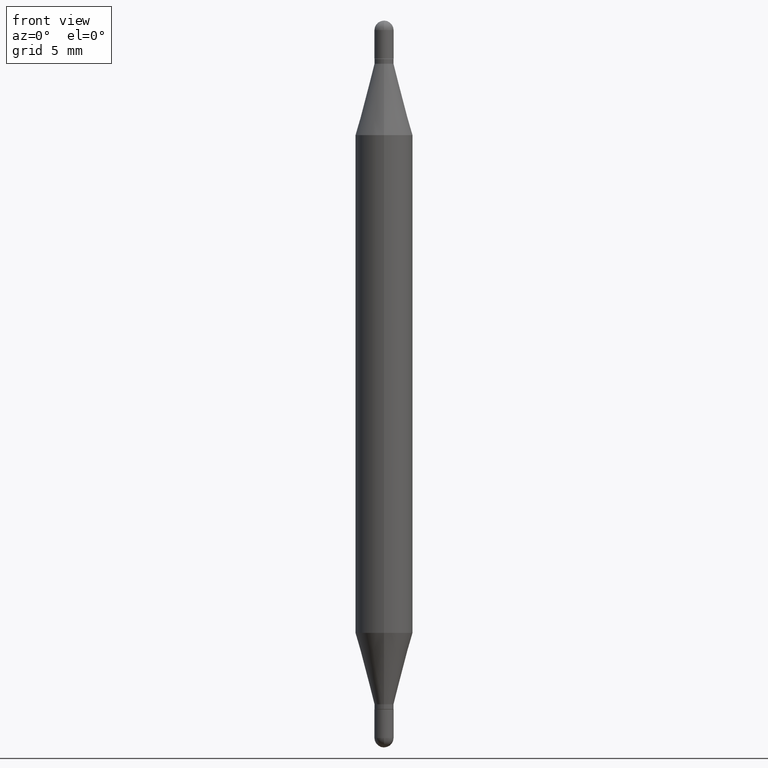
[diagram: clean part render]
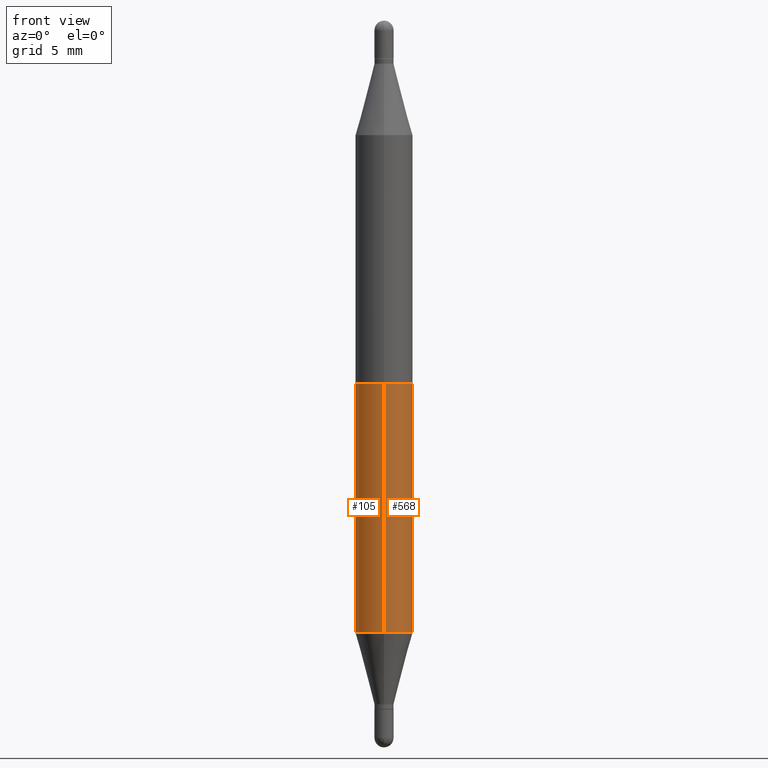
[diagram: same view with one multi-face feature highlighted, each face labeled with its STEP entity id]
A machine part, front view. The highlighted faces form ONE feature: a constant-radius fillet chain: 2 tangent blend faces with common blend radius 1.4999 mm. The faces share edges in the B-rep.
Their STEP definitions:
[1] entity #105 (Cylinder):
#32 = CARTESIAN_POINT ( 'NONE',  ( 4.051124067684090161E-16, 0.05904999999999480109, -1.496100000000000207 ) ) ;
#35 = CARTESIAN_POINT ( 'NONE',  ( 4.051124067684398803E-16, 0.05904999999999917953, -0.2358561992778360206 ) ) ;
#44 = AXIS2_PLACEMENT_3D ( 'NONE', #809, #55, #966 ) ;
#45 = AXIS2_PLACEMENT_3D ( 'NONE', #219, #890, #469 ) ;
#55 = DIRECTION ( 'NONE',  ( -2.452431780940306437E-29, -3.489585843135142611E-15, -1.000000000000000000 ) ) ;
#98 = LINE ( 'NONE', #693, #902 ) ;
#103 = EDGE_CURVE ( 'NONE', #527, #716, #423, .T. ) ;
#105 = ADVANCED_FACE ( 'NONE', ( #107 ), #138, .T. ) ;
#107 = FACE_OUTER_BOUND ( 'NONE', #813, .T. ) ;
#126 = VERTEX_POINT ( 'NONE', #35 ) ;
#132 = ORIENTED_EDGE ( 'NONE', *, *, #766, .T. ) ;
#138 = CYLINDRICAL_SURFACE ( 'NONE', #44, 0.05905000000000001914 ) ;
#147 = ORIENTED_EDGE ( 'NONE', *, *, #1035, .F. ) ;
#219 = CARTESIAN_POINT ( 'NONE',  ( 3.090661948624037332E-29, -8.169992916454894911E-16, -0.2358561992778358263 ) ) ;
#241 = CARTESIAN_POINT ( 'NONE',  ( 3.090661948624037332E-29, -4.387551347627271097E-15, -1.260243800722164131 ) ) ;
#265 = ORIENTED_EDGE ( 'NONE', *, *, #313, .F. ) ;
#266 = DIRECTION ( 'NONE',  ( -2.452431780940306717E-29, -3.489585843135142611E-15, -1.000000000000000000 ) ) ;
#313 = EDGE_CURVE ( 'NONE', #126, #1058, #689, .T. ) ;
#363 = DIRECTION ( 'NONE',  ( -2.452431780940306717E-29, -3.489585843135142611E-15, -1.000000000000000000 ) ) ;
#381 = CARTESIAN_POINT ( 'NONE',  ( -4.123439461173431192E-16, -0.05905000000000439758, -1.260243800722163909 ) ) ;
#400 = DIRECTION ( 'NONE',  ( -6.982962677686265922E-15, -1.000000000000000000, 4.626330217890369336E-15 ) ) ;
#423 = CIRCLE ( 'NONE', #438, 0.05905000000000000526 ) ;
#438 = AXIS2_PLACEMENT_3D ( 'NONE', #241, #495, #400 ) ;
#469 = DIRECTION ( 'NONE',  ( -6.982962677686265922E-15, -1.000000000000000000, 3.469747663417777002E-15 ) ) ;
#495 = DIRECTION ( 'NONE',  ( -2.452431780940306437E-29, 3.481509962685831226E-15, 1.000000000000000000 ) ) ;
#512 = ORIENTED_EDGE ( 'NONE', *, *, #103, .T. ) ;
#527 = VERTEX_POINT ( 'NONE', #878 ) ;
#689 = CIRCLE ( 'NONE', #45, 0.05905000000000000526 ) ;
#693 = CARTESIAN_POINT ( 'NONE',  ( -4.123439461173741313E-16, -0.05905000000000523025, -1.496099999999999541 ) ) ;
#716 = VERTEX_POINT ( 'NONE', #381 ) ;
#766 = EDGE_CURVE ( 'NONE', #126, #527, #782, .T. ) ;
#768 = CARTESIAN_POINT ( 'NONE',  ( -4.123439461173430699E-16, -0.05905000000000081711, -0.2358561992778356042 ) ) ;
#778 = VECTOR ( 'NONE', #363, 39.37007874015748143 ) ;
#782 = LINE ( 'NONE', #32, #778 ) ;
#809 = CARTESIAN_POINT ( 'NONE',  ( 0.000000000000000000, -5.214728217544379106E-15, -1.496099999999999985 ) ) ;
#813 = EDGE_LOOP ( 'NONE', ( #265, #132, #512, #147 ) ) ;
#878 = CARTESIAN_POINT ( 'NONE',  ( 4.051124067684273079E-16, 0.05904999999999561988, -1.260243800722164353 ) ) ;
#890 = DIRECTION ( 'NONE',  ( 2.452431780940306437E-29, 3.489585843135142611E-15, 1.000000000000000000 ) ) ;
#902 = VECTOR ( 'NONE', #266, 39.37007874015748143 ) ;
#966 = DIRECTION ( 'NONE',  ( -6.982962677686265922E-15, -1.000000000000000000, 4.626330217890367758E-15 ) ) ;
#1035 = EDGE_CURVE ( 'NONE', #1058, #716, #98, .T. ) ;
#1058 = VERTEX_POINT ( 'NONE', #768 ) ;
[2] entity #568 (Cylinder):
#32 = CARTESIAN_POINT ( 'NONE',  ( 4.051124067684090161E-16, 0.05904999999999480109, -1.496100000000000207 ) ) ;
#35 = CARTESIAN_POINT ( 'NONE',  ( 4.051124067684398803E-16, 0.05904999999999917953, -0.2358561992778360206 ) ) ;
#38 = ORIENTED_EDGE ( 'NONE', *, *, #541, .T. ) ;
#40 = FACE_OUTER_BOUND ( 'NONE', #1026, .T. ) ;
#65 = CYLINDRICAL_SURFACE ( 'NONE', #976, 0.05905000000000001914 ) ;
#98 = LINE ( 'NONE', #693, #902 ) ;
#126 = VERTEX_POINT ( 'NONE', #35 ) ;
#263 = DIRECTION ( 'NONE',  ( -6.982962677686265922E-15, -1.000000000000000000, 3.469747663417777002E-15 ) ) ;
#266 = DIRECTION ( 'NONE',  ( -2.452431780940306717E-29, -3.489585843135142611E-15, -1.000000000000000000 ) ) ;
#329 = AXIS2_PLACEMENT_3D ( 'NONE', #796, #721, #637 ) ;
#363 = DIRECTION ( 'NONE',  ( -2.452431780940306717E-29, -3.489585843135142611E-15, -1.000000000000000000 ) ) ;
#368 = CARTESIAN_POINT ( 'NONE',  ( 0.000000000000000000, -5.214728217544379106E-15, -1.496099999999999985 ) ) ;
#381 = CARTESIAN_POINT ( 'NONE',  ( -4.123439461173431192E-16, -0.05905000000000439758, -1.260243800722163909 ) ) ;
#471 = AXIS2_PLACEMENT_3D ( 'NONE', #918, #501, #263 ) ;
#501 = DIRECTION ( 'NONE',  ( 2.452431780940306437E-29, 3.489585843135142611E-15, 1.000000000000000000 ) ) ;
#527 = VERTEX_POINT ( 'NONE', #878 ) ;
#541 = EDGE_CURVE ( 'NONE', #716, #527, #801, .T. ) ;
#568 = ADVANCED_FACE ( 'NONE', ( #40 ), #65, .T. ) ;
#637 = DIRECTION ( 'NONE',  ( -6.982962677686265922E-15, -1.000000000000000000, 4.626330217890369336E-15 ) ) ;
#650 = ORIENTED_EDGE ( 'NONE', *, *, #948, .F. ) ;
#693 = CARTESIAN_POINT ( 'NONE',  ( -4.123439461173741313E-16, -0.05905000000000523025, -1.496099999999999541 ) ) ;
#713 = CIRCLE ( 'NONE', #471, 0.05905000000000000526 ) ;
#716 = VERTEX_POINT ( 'NONE', #381 ) ;
#721 = DIRECTION ( 'NONE',  ( -2.452431780940306437E-29, 3.481509962685831226E-15, 1.000000000000000000 ) ) ;
#766 = EDGE_CURVE ( 'NONE', #126, #527, #782, .T. ) ;
#768 = CARTESIAN_POINT ( 'NONE',  ( -4.123439461173430699E-16, -0.05905000000000081711, -0.2358561992778356042 ) ) ;
#778 = VECTOR ( 'NONE', #363, 39.37007874015748143 ) ;
#782 = LINE ( 'NONE', #32, #778 ) ;
#796 = CARTESIAN_POINT ( 'NONE',  ( 3.090661948624037332E-29, -4.387551347627271097E-15, -1.260243800722164131 ) ) ;
#801 = CIRCLE ( 'NONE', #329, 0.05905000000000000526 ) ;
#878 = CARTESIAN_POINT ( 'NONE',  ( 4.051124067684273079E-16, 0.05904999999999561988, -1.260243800722164353 ) ) ;
#889 = ORIENTED_EDGE ( 'NONE', *, *, #1035, .T. ) ;
#902 = VECTOR ( 'NONE', #266, 39.37007874015748143 ) ;
#918 = CARTESIAN_POINT ( 'NONE',  ( 3.090661948624037332E-29, -8.169992916454894911E-16, -0.2358561992778358263 ) ) ;
#948 = EDGE_CURVE ( 'NONE', #1058, #126, #713, .T. ) ;
#976 = AXIS2_PLACEMENT_3D ( 'NONE', #368, #1066, #1086 ) ;
#1026 = EDGE_LOOP ( 'NONE', ( #1085, #650, #889, #38 ) ) ;
#1035 = EDGE_CURVE ( 'NONE', #1058, #716, #98, .T. ) ;
#1058 = VERTEX_POINT ( 'NONE', #768 ) ;
#1066 = DIRECTION ( 'NONE',  ( -2.452431780940306437E-29, -3.489585843135142611E-15, -1.000000000000000000 ) ) ;
#1085 = ORIENTED_EDGE ( 'NONE', *, *, #766, .F. ) ;
#1086 = DIRECTION ( 'NONE',  ( -6.982962677686265922E-15, -1.000000000000000000, 4.626330217890367758E-15 ) ) ;